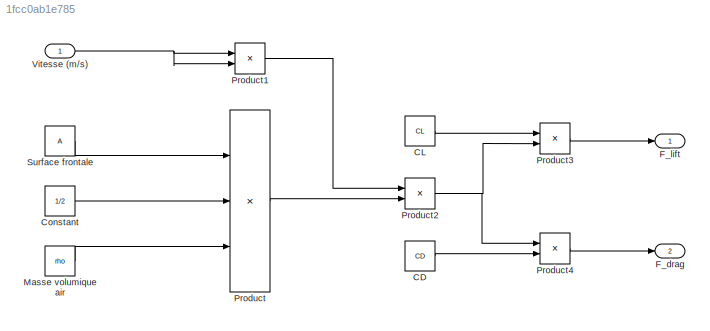
MODEL slx_1fcc0ab1e785
KIND model
CONFIG AbsTol = auto
CONFIG EnableMultiTasking = off
CONFIG FixedStep = Ts
CONFIG MaxStep = auto
CONFIG MinStep = auto
CONFIG RelTol = 1e-3
CONFIG SampleTimeConstraint = Unconstrained
CONFIG SolverName = FixedStepAuto
CONFIG StartTime = 0.0
CONFIG StopTime = 10.0
BLOCK [Constant] CD
  Value = CD
BLOCK [Constant] CL
  Value = CL
BLOCK [Constant] Constant
  Value = 1/2
BLOCK [Outport] F_drag
  Port = 2
BLOCK [Outport] F_lift
BLOCK [Constant] Masse volumique air
  Value = rho
BLOCK [Product] Product
  Inputs = 3
BLOCK [Product] Product1
BLOCK [Product] Product2
BLOCK [Product] Product3
BLOCK [Product] Product4
BLOCK [Constant] Surface frontale
  Value = A
BLOCK [Inport] Vitesse (m//s)
LINE CD:1 -> Product4:2
LINE CL:1 -> Product3:1
LINE Constant:1 -> Product:2
LINE Masse volumique air:1 -> Product:3
LINE Product1:1 -> Product2:1
NET Product2:1 -> Product3:2, Product4:1
LINE Product3:1 -> F_lift:1
LINE Product4:1 -> F_drag:1
LINE Product:1 -> Product2:2
LINE Surface frontale:1 -> Product:1
NET Vitesse (m//s):1 -> Product1:1, Product1:2
note: NET lines group one-source signal fan-out (src -> all destinations, sorted); 1:1 wires keep LINE
